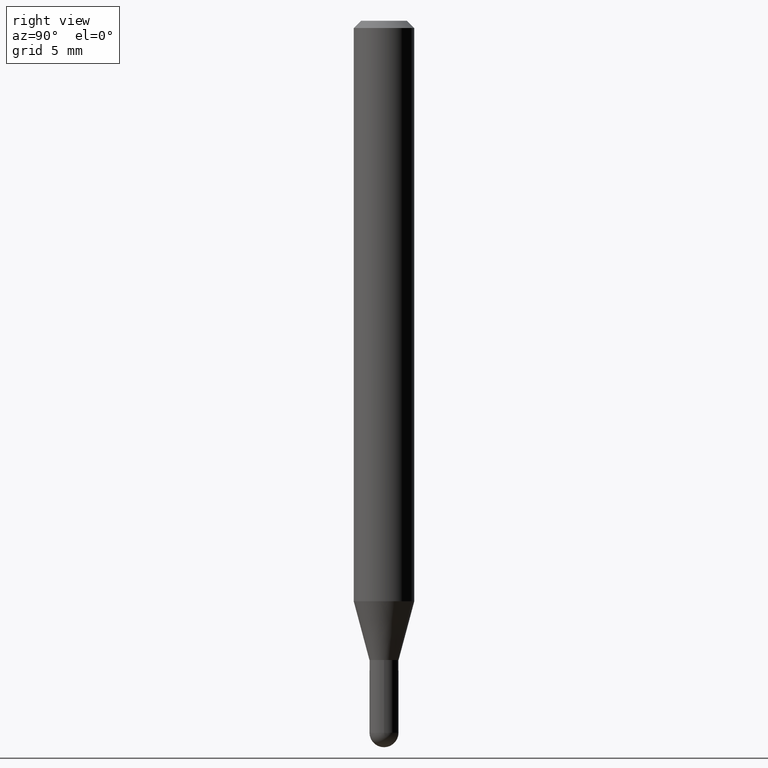
[diagram: clean part render]
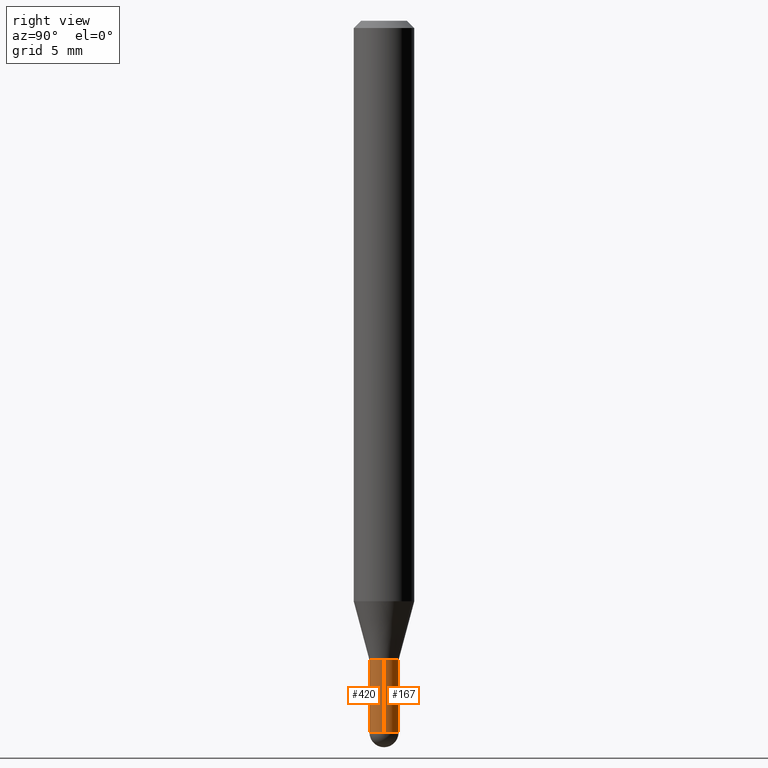
[diagram: same view with one multi-face feature highlighted, each face labeled with its STEP entity id]
A machine part, right view. The highlighted faces form ONE feature: a constant-radius fillet chain: 2 tangent blend faces with common blend radius 0.762 mm. The faces share edges in the B-rep.
Their STEP definitions:
[1] entity #167 (Cylinder):
#12 = ORIENTED_EDGE ( 'NONE', *, *, #25, .T. ) ;
#20 = CARTESIAN_POINT ( 'NONE',  ( 0.000000000000000000, 0.000000000000000000, 0.000000000000000000 ) ) ;
#21 = ORIENTED_EDGE ( 'NONE', *, *, #235, .T. ) ;
#25 = EDGE_CURVE ( 'NONE', #284, #497, #265, .T. ) ;
#30 = VERTEX_POINT ( 'NONE', #107 ) ;
#31 = LINE ( 'NONE', #177, #79 ) ;
#33 = CARTESIAN_POINT ( 'NONE',  ( -0.03000000000000000583, -4.657453646958158772E-15, -1.470000000000000417 ) ) ;
#43 = VERTEX_POINT ( 'NONE', #33 ) ;
#58 = EDGE_CURVE ( 'NONE', #284, #30, #461, .T. ) ;
#79 = VECTOR ( 'NONE', #172, 39.37007874015748143 ) ;
#81 = EDGE_CURVE ( 'NONE', #30, #175, #293, .T. ) ;
#107 = CARTESIAN_POINT ( 'NONE',  ( 0.02999999999999999889, -4.818244247603540754E-15, -1.320000000000000062 ) ) ;
#110 = CARTESIAN_POINT ( 'NONE',  ( 0.03000000000000000583, -2.094888803305880457E-16, 1.462853032738781053E-30 ) ) ;
#120 = CYLINDRICAL_SURFACE ( 'NONE', #434, 0.03000000000000000583 ) ;
#127 = CARTESIAN_POINT ( 'NONE',  ( 3.594839145092151380E-29, -5.132477568099425596E-15, -1.470000000000000417 ) ) ;
#131 = AXIS2_PLACEMENT_3D ( 'NONE', #468, #500, #421 ) ;
#136 = DIRECTION ( 'NONE',  ( 1.000000000000000000, -6.982962677686268288E-15, 0.000000000000000000 ) ) ;
#167 = ADVANCED_FACE ( 'NONE', ( #476 ), #120, .T. ) ;
#172 = DIRECTION ( 'NONE',  ( -2.445468806185136877E-29, 3.491481338843145188E-15, 1.000000000000000000 ) ) ;
#175 = VERTEX_POINT ( 'NONE', #285 ) ;
#176 = DIRECTION ( 'NONE',  ( -2.445468806185136597E-29, 3.491481338843145583E-15, 1.000000000000000000 ) ) ;
#177 = CARTESIAN_POINT ( 'NONE',  ( -0.03000000000000000583, 2.131628207280300972E-16, -1.475680527076471882E-30 ) ) ;
#186 = CARTESIAN_POINT ( 'NONE',  ( 2.131628207280663601E-16, 0.02999999999999492656, -1.470000000000000417 ) ) ;
#213 = CARTESIAN_POINT ( 'NONE',  ( 3.228018824164380442E-29, -4.608755367272952437E-15, -1.320000000000000062 ) ) ;
#235 = EDGE_CURVE ( 'NONE', #497, #43, #457, .T. ) ;
#255 = DIRECTION ( 'NONE',  ( 1.000000000000000000, -6.982962677686266711E-15, 0.000000000000000000 ) ) ;
#264 = DIRECTION ( 'NONE',  ( -2.445468806185136877E-29, 3.491481338843145188E-15, 1.000000000000000000 ) ) ;
#265 = CIRCLE ( 'NONE', #131, 0.03000000000000000583 ) ;
#284 = VERTEX_POINT ( 'NONE', #450 ) ;
#285 = CARTESIAN_POINT ( 'NONE',  ( -0.02999999999999999889, -4.657453646958158772E-15, -1.320000000000000062 ) ) ;
#290 = DIRECTION ( 'NONE',  ( 1.000000000000000000, -6.982962677686266711E-15, 4.876176775795935793E-29 ) ) ;
#293 = CIRCLE ( 'NONE', #466, 0.02999999999999999889 ) ;
#295 = ORIENTED_EDGE ( 'NONE', *, *, #58, .F. ) ;
#305 = ORIENTED_EDGE ( 'NONE', *, *, #333, .T. ) ;
#333 = EDGE_CURVE ( 'NONE', #43, #175, #31, .T. ) ;
#334 = EDGE_LOOP ( 'NONE', ( #21, #305, #360, #295, #12 ) ) ;
#360 = ORIENTED_EDGE ( 'NONE', *, *, #81, .F. ) ;
#421 = DIRECTION ( 'NONE',  ( 1.000000000000000000, -6.982962677686266711E-15, 0.000000000000000000 ) ) ;
#434 = AXIS2_PLACEMENT_3D ( 'NONE', #20, #449, #290 ) ;
#441 = DIRECTION ( 'NONE',  ( -2.445468806185136597E-29, 3.491481338843145583E-15, 1.000000000000000000 ) ) ;
#449 = DIRECTION ( 'NONE',  ( -2.445468806185136597E-29, 3.491481338843145583E-15, 1.000000000000000000 ) ) ;
#450 = CARTESIAN_POINT ( 'NONE',  ( 0.03000000000000000583, -5.080105348016776545E-15, -1.470000000000000417 ) ) ;
#454 = VECTOR ( 'NONE', #264, 39.37007874015748143 ) ;
#457 = CIRCLE ( 'NONE', #494, 0.03000000000000000583 ) ;
#461 = LINE ( 'NONE', #110, #454 ) ;
#466 = AXIS2_PLACEMENT_3D ( 'NONE', #213, #176, #136 ) ;
#468 = CARTESIAN_POINT ( 'NONE',  ( 3.594839145092151380E-29, -5.132477568099425596E-15, -1.470000000000000417 ) ) ;
#476 = FACE_OUTER_BOUND ( 'NONE', #334, .T. ) ;
#494 = AXIS2_PLACEMENT_3D ( 'NONE', #127, #441, #255 ) ;
#497 = VERTEX_POINT ( 'NONE', #186 ) ;
#500 = DIRECTION ( 'NONE',  ( -2.445468806185136597E-29, 3.491481338843145583E-15, 1.000000000000000000 ) ) ;
[2] entity #420 (Cylinder):
#5 = EDGE_CURVE ( 'NONE', #104, #284, #362, .T. ) ;
#19 = ORIENTED_EDGE ( 'NONE', *, *, #58, .T. ) ;
#30 = VERTEX_POINT ( 'NONE', #107 ) ;
#31 = LINE ( 'NONE', #177, #79 ) ;
#32 = DIRECTION ( 'NONE',  ( -2.445468806185136597E-29, 3.491481338843145583E-15, 1.000000000000000000 ) ) ;
#33 = CARTESIAN_POINT ( 'NONE',  ( -0.03000000000000000583, -4.657453646958158772E-15, -1.470000000000000417 ) ) ;
#43 = VERTEX_POINT ( 'NONE', #33 ) ;
#45 = DIRECTION ( 'NONE',  ( 1.000000000000000000, -6.982962677686268288E-15, 0.000000000000000000 ) ) ;
#48 = ORIENTED_EDGE ( 'NONE', *, *, #163, .T. ) ;
#58 = EDGE_CURVE ( 'NONE', #284, #30, #461, .T. ) ;
#71 = CIRCLE ( 'NONE', #352, 0.03000000000000000583 ) ;
#79 = VECTOR ( 'NONE', #172, 39.37007874015748143 ) ;
#84 = CARTESIAN_POINT ( 'NONE',  ( 3.228018824164380442E-29, -4.608755367272952437E-15, -1.320000000000000062 ) ) ;
#104 = VERTEX_POINT ( 'NONE', #423 ) ;
#107 = CARTESIAN_POINT ( 'NONE',  ( 0.02999999999999999889, -4.818244247603540754E-15, -1.320000000000000062 ) ) ;
#110 = CARTESIAN_POINT ( 'NONE',  ( 0.03000000000000000583, -2.094888803305880457E-16, 1.462853032738781053E-30 ) ) ;
#117 = CARTESIAN_POINT ( 'NONE',  ( 3.594839145092151380E-29, -5.132477568099425596E-15, -1.470000000000000417 ) ) ;
#122 = EDGE_CURVE ( 'NONE', #175, #30, #320, .T. ) ;
#160 = AXIS2_PLACEMENT_3D ( 'NONE', #84, #307, #45 ) ;
#163 = EDGE_CURVE ( 'NONE', #43, #104, #71, .T. ) ;
#172 = DIRECTION ( 'NONE',  ( -2.445468806185136877E-29, 3.491481338843145188E-15, 1.000000000000000000 ) ) ;
#175 = VERTEX_POINT ( 'NONE', #285 ) ;
#177 = CARTESIAN_POINT ( 'NONE',  ( -0.03000000000000000583, 2.131628207280300972E-16, -1.475680527076471882E-30 ) ) ;
#181 = ORIENTED_EDGE ( 'NONE', *, *, #5, .T. ) ;
#196 = ORIENTED_EDGE ( 'NONE', *, *, #122, .F. ) ;
#197 = DIRECTION ( 'NONE',  ( 1.000000000000000000, -6.982962677686266711E-15, 0.000000000000000000 ) ) ;
#207 = FACE_OUTER_BOUND ( 'NONE', #377, .T. ) ;
#237 = AXIS2_PLACEMENT_3D ( 'NONE', #378, #32, #492 ) ;
#264 = DIRECTION ( 'NONE',  ( -2.445468806185136877E-29, 3.491481338843145188E-15, 1.000000000000000000 ) ) ;
#273 = DIRECTION ( 'NONE',  ( -2.445468806185136597E-29, 3.491481338843145583E-15, 1.000000000000000000 ) ) ;
#284 = VERTEX_POINT ( 'NONE', #450 ) ;
#285 = CARTESIAN_POINT ( 'NONE',  ( -0.02999999999999999889, -4.657453646958158772E-15, -1.320000000000000062 ) ) ;
#300 = CARTESIAN_POINT ( 'NONE',  ( 3.594839145092151380E-29, -5.132477568099425596E-15, -1.470000000000000417 ) ) ;
#307 = DIRECTION ( 'NONE',  ( -2.445468806185136597E-29, 3.491481338843145583E-15, 1.000000000000000000 ) ) ;
#320 = CIRCLE ( 'NONE', #160, 0.02999999999999999889 ) ;
#330 = CYLINDRICAL_SURFACE ( 'NONE', #237, 0.03000000000000000583 ) ;
#333 = EDGE_CURVE ( 'NONE', #43, #175, #31, .T. ) ;
#352 = AXIS2_PLACEMENT_3D ( 'NONE', #117, #273, #197 ) ;
#362 = CIRCLE ( 'NONE', #483, 0.03000000000000000583 ) ;
#377 = EDGE_LOOP ( 'NONE', ( #404, #48, #181, #19, #196 ) ) ;
#378 = CARTESIAN_POINT ( 'NONE',  ( 0.000000000000000000, 0.000000000000000000, 0.000000000000000000 ) ) ;
#380 = DIRECTION ( 'NONE',  ( -2.445468806185136597E-29, 3.491481338843145583E-15, 1.000000000000000000 ) ) ;
#404 = ORIENTED_EDGE ( 'NONE', *, *, #333, .F. ) ;
#414 = DIRECTION ( 'NONE',  ( 1.000000000000000000, -6.982962677686266711E-15, 0.000000000000000000 ) ) ;
#420 = ADVANCED_FACE ( 'NONE', ( #207 ), #330, .T. ) ;
#423 = CARTESIAN_POINT ( 'NONE',  ( -2.094888803305524730E-16, -0.03000000000000519612, -1.470000000000000417 ) ) ;
#450 = CARTESIAN_POINT ( 'NONE',  ( 0.03000000000000000583, -5.080105348016776545E-15, -1.470000000000000417 ) ) ;
#454 = VECTOR ( 'NONE', #264, 39.37007874015748143 ) ;
#461 = LINE ( 'NONE', #110, #454 ) ;
#483 = AXIS2_PLACEMENT_3D ( 'NONE', #300, #380, #414 ) ;
#492 = DIRECTION ( 'NONE',  ( 1.000000000000000000, -6.982962677686266711E-15, 4.876176775795935793E-29 ) ) ;